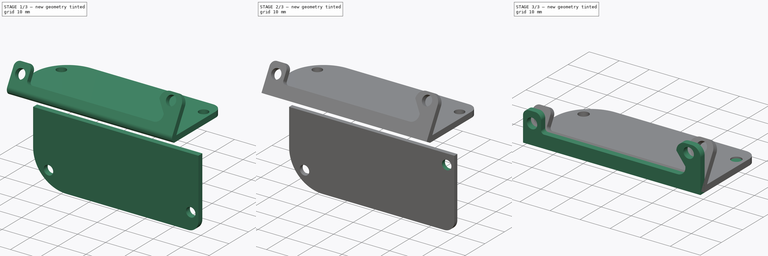
[diagram: build sequence overview — one tinted view per stage of 3, left to right]
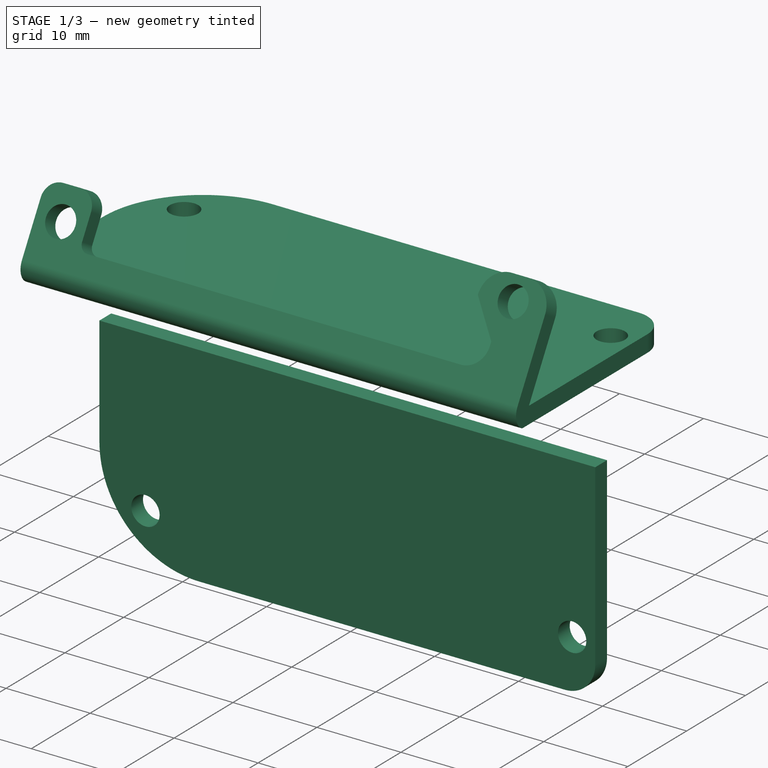
[diagram: stage 1 of 3 — iso view after this stage's code; geometry added in this stage tinted green]
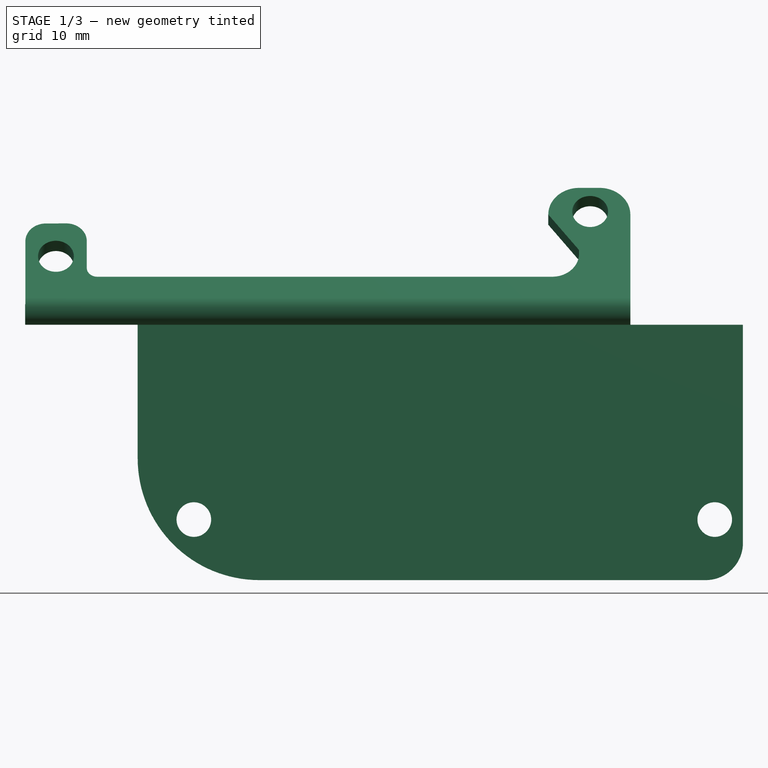
[diagram: stage 1 of 3 — front view after this stage's code; geometry added in this stage tinted green]
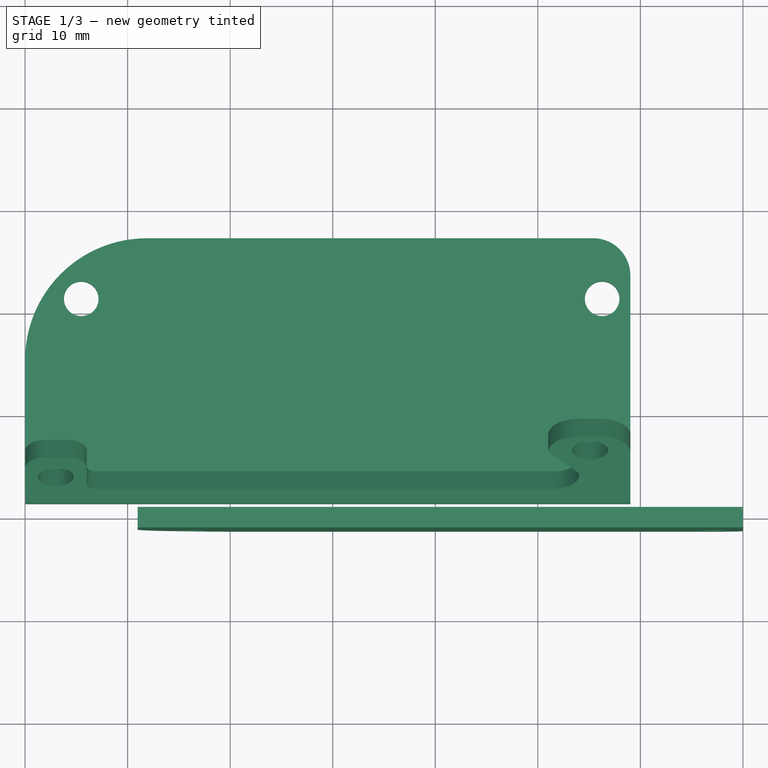
[diagram: stage 1 of 3 — top view after this stage's code; geometry added in this stage tinted green]
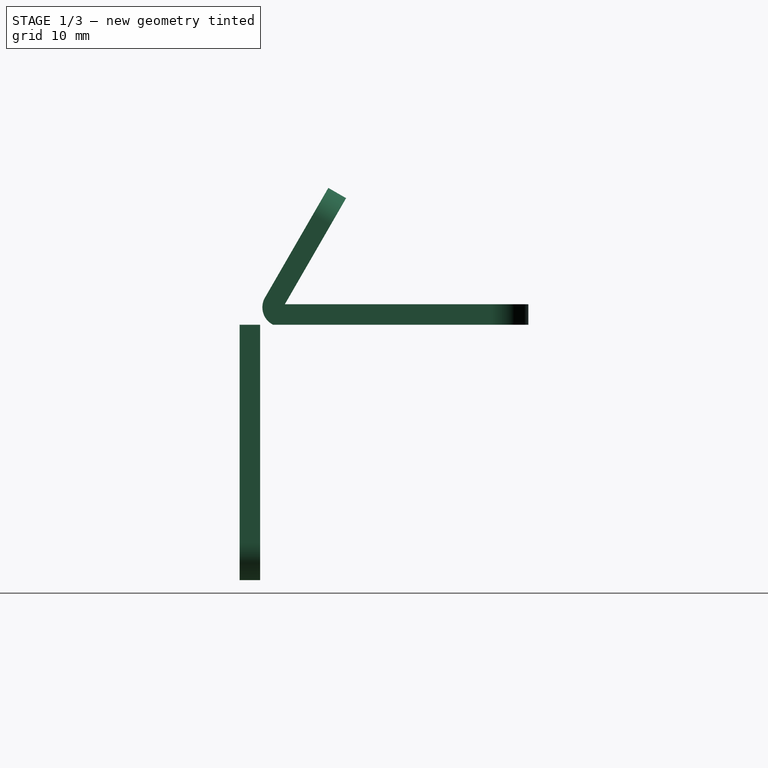
[diagram: stage 1 of 3 — right view after this stage's code; geometry added in this stage tinted green]
FCSTD DOCUMENT  (FreeCAD 0.16R6707 (Git))
Label: icezum-arduino-stand-holder
License: All rights reserved
LicenseURL: http://en.wikipedia.org/wiki/All_rights_reserved
objects: Sketcher::SketchObject×4, PartDesign::Pad×4, Part::Feature×3, Part::MultiFuse×2, App::DocumentObjectGroup×2, Part::Fillet×1
note: 18 computed .brp shape members not serialized (recipe doc carries the construction recipe); baked Part::Feature solids carry a one-line shape summary decoded from their .brp

FEATURE [Sketcher::SketchObject] Sketch004
  Placement = pos=(0,-1.2525,0) rot=(1,0,0;1.5708rad)
  sketch-geometry (8):
    g0: LineSegment StartX=10.98 StartY=0 StartZ=0 EndX=70 EndY=0 EndZ=0
    g1: Circle CenterX=67.2508 CenterY=-19 CenterZ=0 NormalX=0 NormalY=0 NormalZ=1 Radius=1.68752
    g2: LineSegment StartX=70 StartY=0 StartZ=0 EndX=70 EndY=-21.2825 EndZ=0
    g3: LineSegment StartX=10.98 StartY=0 StartZ=0 EndX=10.98 EndY=-13.025 EndZ=0
    g4: LineSegment StartX=22.8593 StartY=-24.9043 StartZ=0 EndX=66.3781 EndY=-24.9043 EndZ=0
    g5: ArcOfCircle CenterX=22.8593 CenterY=-13.025 CenterZ=0 NormalX=0 NormalY=0 NormalZ=1 Radius=11.8793 StartAngle=3.14159 EndAngle=4.71239
    g6: ArcOfCircle CenterX=66.3781 CenterY=-21.2825 CenterZ=0 NormalX=0 NormalY=0 NormalZ=1 Radius=3.62188 StartAngle=4.71239 EndAngle=6.28319
    g7: Circle CenterX=16.4578 CenterY=-19 CenterZ=0 NormalX=0 NormalY=0 NormalZ=1 Radius=1.68752
  constraints (15):
    c: PointOnObject(g0,g-1)
    c: PointOnObject(g0,g-1)
    c: Coincident(g0,g2)
    c: Vertical(g2)
    c: Coincident(g3,g0)
    c: Vertical(g3)
    c: Horizontal(g4)
    c: Tangent(g3,g5) = -1.5708
    c: Tangent(g4,g5) = -1.5708
    c: Tangent(g2,g6) = 1.5708
    c: Tangent(g4,g6) = -1.5708
    c: DistanceX(g0,g0) = 59.02
    c: DistanceX(g7,g1) = 50.793
    c: DistanceY(g7,g0) = 19
    c: DistanceX(g0,g7) = 5.47777
FEATURE [PartDesign::Pad] Pad003  label="base_and_horizontal_holder001"
  Length = 2
  Length2 = 100
  Placement = pos=(0,-1.2525,0) rot=(1,0,0;1.5708rad)
  Reversed = true
  Sketch = -> Sketch004
  Type = 0
FEATURE [Part::Feature] Fusion001001_solid  label="icezum_30_horizontal_holder002 (Solid)"
  shape: bbox 59.02 x 13.34 x 26.63 mm, 29 faces (baked)
FEATURE [Part::Fillet] Fillet  label="rounded_icezum_30_degrees_stand_holder"
  Base = -> Fusion001001_solid
  Edges = 1 edges r=1.9: [Edge38]
  Placement = pos=(23.27,-2,30.75) rot=(1,0,0;1.5708rad)
FEATURE [Part::Feature] Pcb001  label="pcb_horizontal"
  Placement = pos=(168,-85.5,3) rot=(0,0,1;3.14159rad)
  shape: bbox 68.58 x 53.34 x 1.6 mm, 170 faces (baked)
FEATURE [Part::Feature] Pcb002  label="pcb_vertical"
  Placement = pos=(-107.5,-2,146.2) rot=(-1,0,0;4.71239rad)
  shape: bbox 68.58 x 1.6 x 53.34 mm, 170 faces (baked)
FEATURE [App::DocumentObjectGroup] Grupo  label="pcbs"
  Group = -> [Pcb001,Pcb002]
FEATURE [App::DocumentObjectGroup] Grupo003  label="icezum_vertical-horizontal_holder"
  Group = -> [Fusion,Fusion001,Fillet,Grupo]
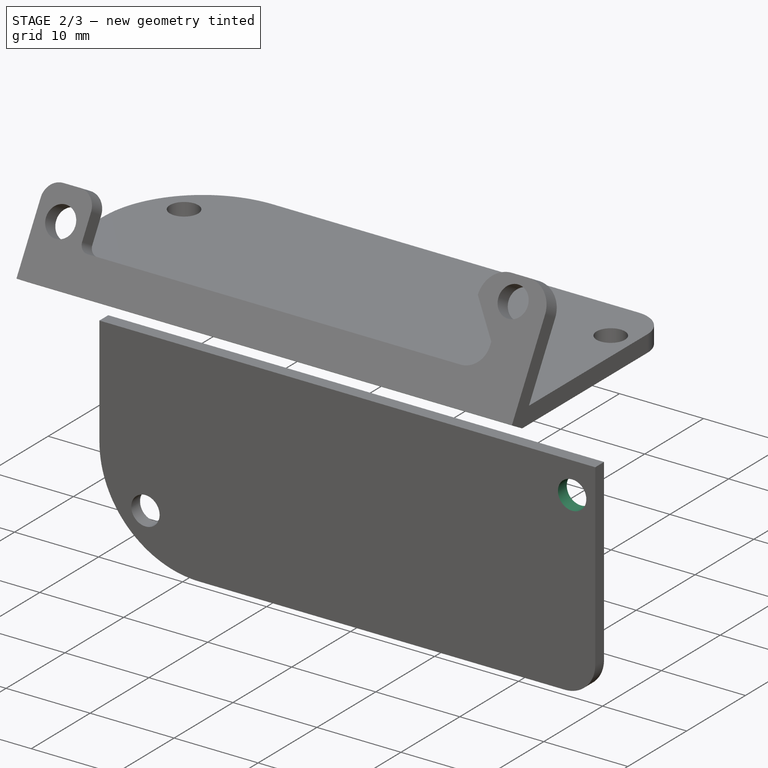
[diagram: stage 2 of 3 — iso view after this stage's code; geometry added in this stage tinted green]
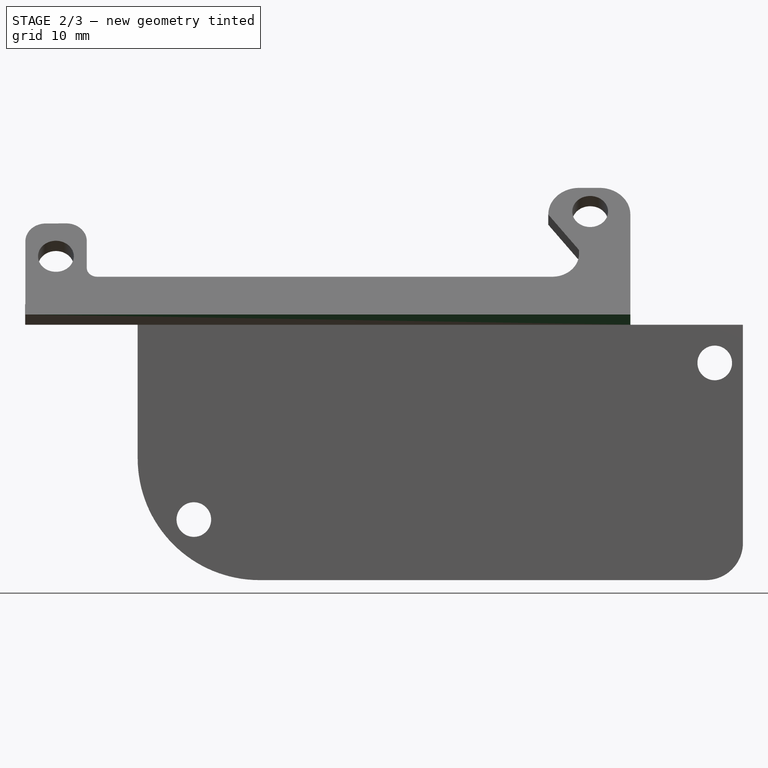
[diagram: stage 2 of 3 — front view after this stage's code; geometry added in this stage tinted green]
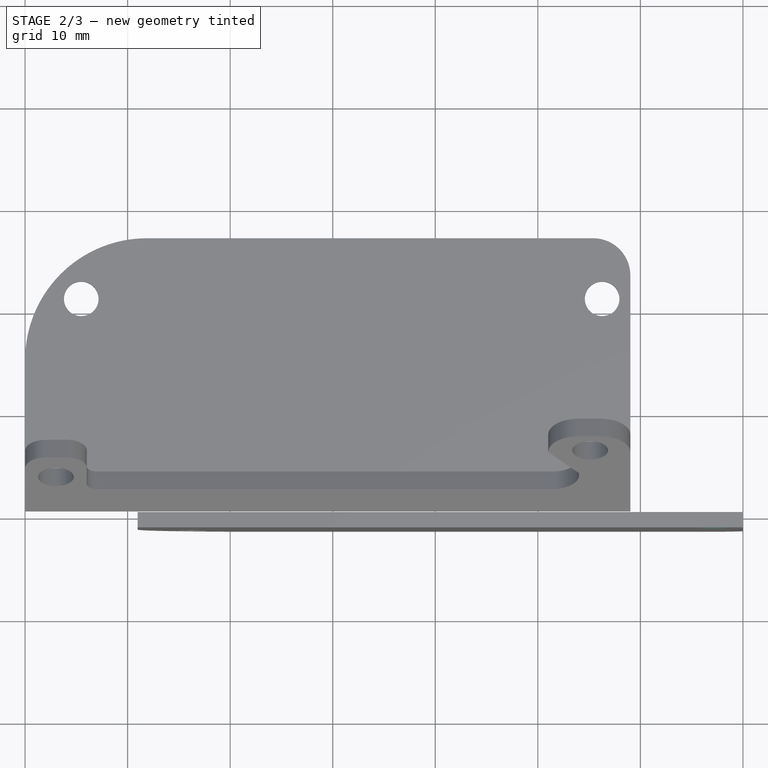
[diagram: stage 2 of 3 — top view after this stage's code; geometry added in this stage tinted green]
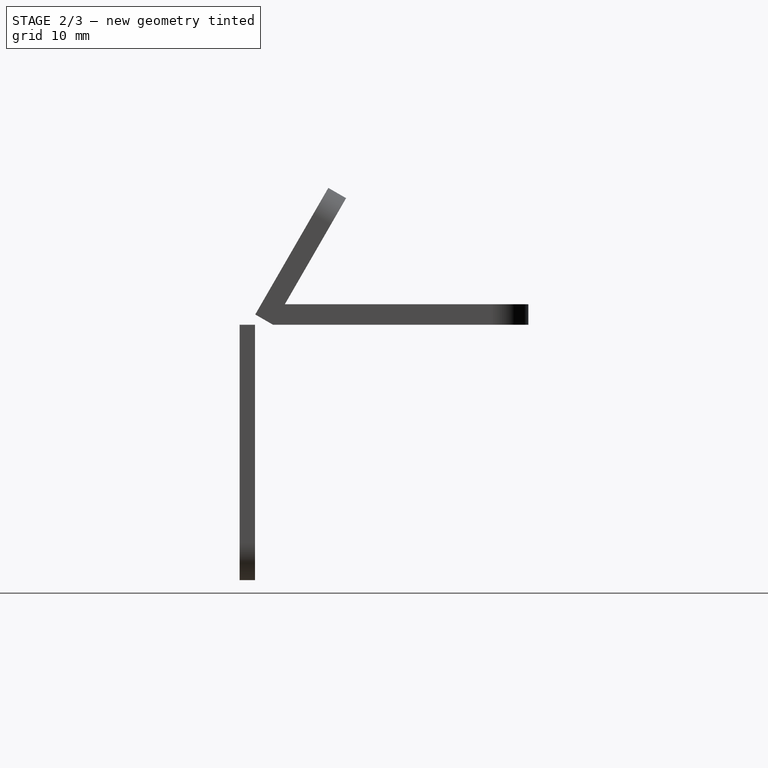
[diagram: stage 2 of 3 — right view after this stage's code; geometry added in this stage tinted green]
FEATURE [Sketcher::SketchObject] Sketch001
  Placement = pos=(0,-1.2525,0) rot=(1,0,0;1.5708rad)
  sketch-geometry (8):
    g0: LineSegment StartX=10.98 StartY=0 StartZ=0 EndX=70 EndY=0 EndZ=0
    g1: Circle CenterX=67.2508 CenterY=-3.72747 CenterZ=0 NormalX=0 NormalY=0 NormalZ=1 Radius=1.68752
    g2: LineSegment StartX=70 StartY=0 StartZ=0 EndX=70 EndY=-21.2825 EndZ=0
    g3: LineSegment StartX=10.98 StartY=0 StartZ=0 EndX=10.98 EndY=-13.025 EndZ=0
    g4: LineSegment StartX=22.8593 StartY=-24.9043 StartZ=0 EndX=66.3781 EndY=-24.9043 EndZ=0
    g5: ArcOfCircle CenterX=22.8593 CenterY=-13.025 CenterZ=0 NormalX=0 NormalY=0 NormalZ=1 Radius=11.8793 StartAngle=3.14159 EndAngle=4.71239
    g6: ArcOfCircle CenterX=66.3781 CenterY=-21.2825 CenterZ=0 NormalX=0 NormalY=0 NormalZ=1 Radius=3.62188 StartAngle=4.71239 EndAngle=6.28319
    g7: Circle CenterX=16.4578 CenterY=-19 CenterZ=0 NormalX=0 NormalY=0 NormalZ=1 Radius=1.68752
  constraints (14):
    c: PointOnObject(g0,g-1)
    c: PointOnObject(g0,g-1)
    c: Coincident(g0,g2)
    c: Vertical(g2)
    c: Coincident(g3,g0)
    c: Vertical(g3)
    c: Horizontal(g4)
    c: Tangent(g3,g5) = -1.5708
    c: Tangent(g4,g5) = -1.5708
    c: Tangent(g2,g6) = 1.5708
    c: Tangent(g4,g6) = -1.5708
    c: DistanceX(g0,g0) = 59.02
    c: DistanceX(g7,g1) = 50.793
    c: DistanceY(g7,g1) = 15.2725
FEATURE [PartDesign::Pad] Pad001  label="base_and_horizontal_holder"
  Length = 1.5
  Length2 = 100
  Placement = pos=(0,-1.2525,0) rot=(1,0,0;1.5708rad)
  Reversed = true
  Sketch = -> Sketch001
  Type = 0
FEATURE [Sketcher::SketchObject] Sketch003  label="solid001"
  Placement = pos=(0,-0.167,-0.63) rot=(-1,0,0;0.523599rad)
  sketch-geometry (18):
    g0: Circle CenterX=13.9885 CenterY=5.29909 CenterZ=0 NormalX=0 NormalY=0 NormalZ=1 Radius=1.74609
    g1: Circle CenterX=66.0823 CenterY=10.3424 CenterZ=0 NormalX=0 NormalY=0 NormalZ=1 Radius=1.74609
    g2: LineSegment StartX=11.0125 StartY=-1.25328 StartZ=0 EndX=11.0125 EndY=6.99714 EndZ=0
    g3: LineSegment StartX=11.0125 StartY=-1.25328 StartZ=0 EndX=70 EndY=-1.25328 EndZ=0
    g4: LineSegment StartX=70 StartY=10 StartZ=0 EndX=70 EndY=-1.25328 EndZ=0
    g5: ArcOfCircle CenterX=13.0083 CenterY=6.99714 CenterZ=0 NormalX=0 NormalY=0 NormalZ=1 Radius=1.99581 StartAngle=1.57433 EndAngle=3.14159
    g6: LineSegment StartX=13.0013 StartY=8.99294 StartZ=0 EndX=15 EndY=9 EndZ=0
    g7: LineSegment StartX=16.9976 StartY=7.00943 StartZ=0 EndX=16.9976 EndY=4 EndZ=0
    g8: LineSegment StartX=17.9976 StartY=3 StartZ=0 EndX=62 EndY=3 EndZ=0
    g9: LineSegment StartX=62 StartY=3 StartZ=0 EndX=62.4013 EndY=3 EndZ=0
    g10: LineSegment StartX=65 StartY=5.59871 StartZ=0 EndX=65 EndY=6 EndZ=0
    g11: LineSegment StartX=65 StartY=13 StartZ=0 EndX=67 EndY=13 EndZ=0
    g12: ArcOfCircle CenterX=15.007 CenterY=7.00943 CenterZ=0 NormalX=0 NormalY=0 NormalZ=1 Radius=1.99059 StartAngle=0 EndAngle=1.57433
    g13: ArcOfCircle CenterX=17.9976 CenterY=4 CenterZ=0 NormalX=0 NormalY=0 NormalZ=1 Radius=1 StartAngle=3.14159 EndAngle=4.71239
    g14: ArcOfCircle CenterX=62.4013 CenterY=5.59871 CenterZ=0 NormalX=0 NormalY=0 NormalZ=1 Radius=2.59871 StartAngle=4.71239 EndAngle=6.28319
    g15: ArcOfCircle CenterX=65 CenterY=10 CenterZ=0 NormalX=0 NormalY=0 NormalZ=1 Radius=3 StartAngle=1.5708 EndAngle=3.14159
    g16: ArcOfCircle CenterX=67 CenterY=10 CenterZ=0 NormalX=0 NormalY=0 NormalZ=1 Radius=3 StartAngle=0 EndAngle=1.5708
    g17: LineSegment StartX=65 StartY=6 StartZ=0 EndX=62 EndY=10 EndZ=0
  constraints (25):
    c: Vertical(g2)
    c: Coincident(g3,g2)
    c: Horizontal(g3)
    c: DistanceY(g0,g1) = 5.04331
    c: Coincident(g4,g3)
    c: Vertical(g4)
    c: Tangent(g2,g5) = 1.5708
    c: Tangent(g5,g6) = 1.5708
    c: Vertical(g7)
    c: Horizontal(g8)
    c: Coincident(g8,g9)
    c: Horizontal(g9)
    c: Vertical(g10)
    c: Horizontal(g11)
    c: Tangent(g7,g12) = 1.5708
    c: Tangent(g6,g12) = 1.5708
    c: Tangent(g7,g13) = -1.5708
    c: Tangent(g8,g13) = -1.5708
    c: Tangent(g10,g14) = -1.5708
    c: Tangent(g9,g14) = -1.5708
    c: Tangent(g11,g15) = 1.5708
    c: Tangent(g11,g16) = 1.5708
    c: Tangent(g4,g16) = 1.5708
    c: Coincident(g17,g10)
    c: Coincident(g17,g15)
FEATURE [PartDesign::Pad] Pad002  label="vertical_holder001"
  Length = 2
  Length2 = 100
  Placement = pos=(0,-0.167,-0.63) rot=(-1,0,0;0.523599rad)
  Sketch = -> Sketch003
  Type = 0
FEATURE [Part::MultiFuse] Fusion001  label="icezum_30_degrees_stand_holder"
  Placement = pos=(-10.98,2,1.25) rot=(1,0,0;1.5708rad)
  Shapes = -> [Pad002,Pad003]
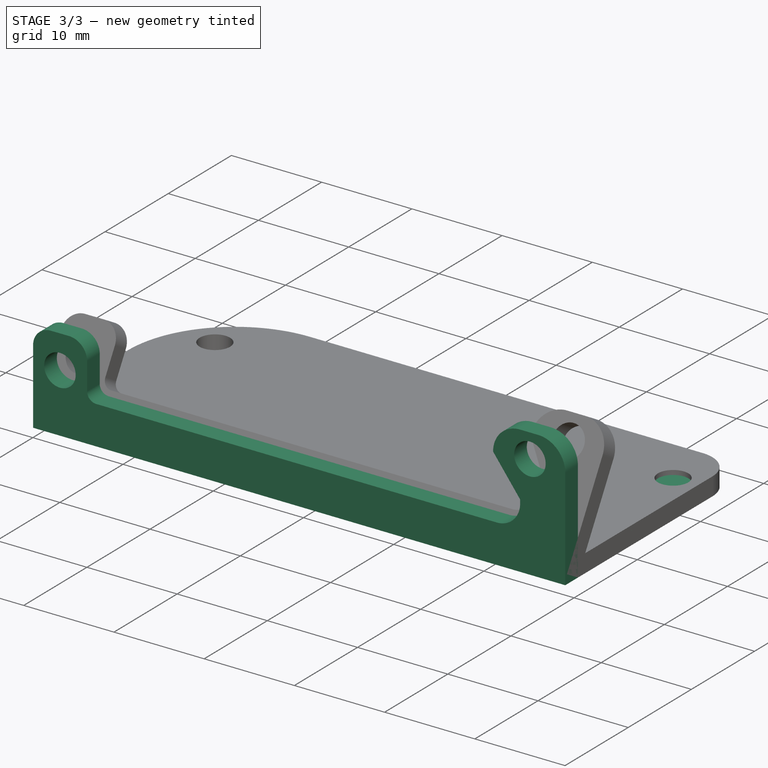
[diagram: stage 3 of 3 — iso view after this stage's code; geometry added in this stage tinted green]
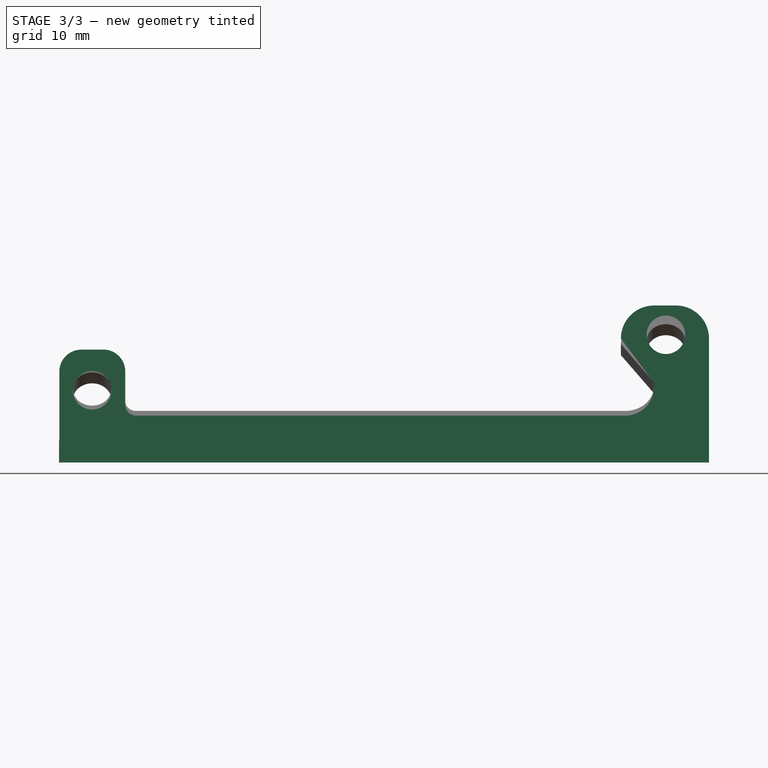
[diagram: stage 3 of 3 — front view after this stage's code; geometry added in this stage tinted green]
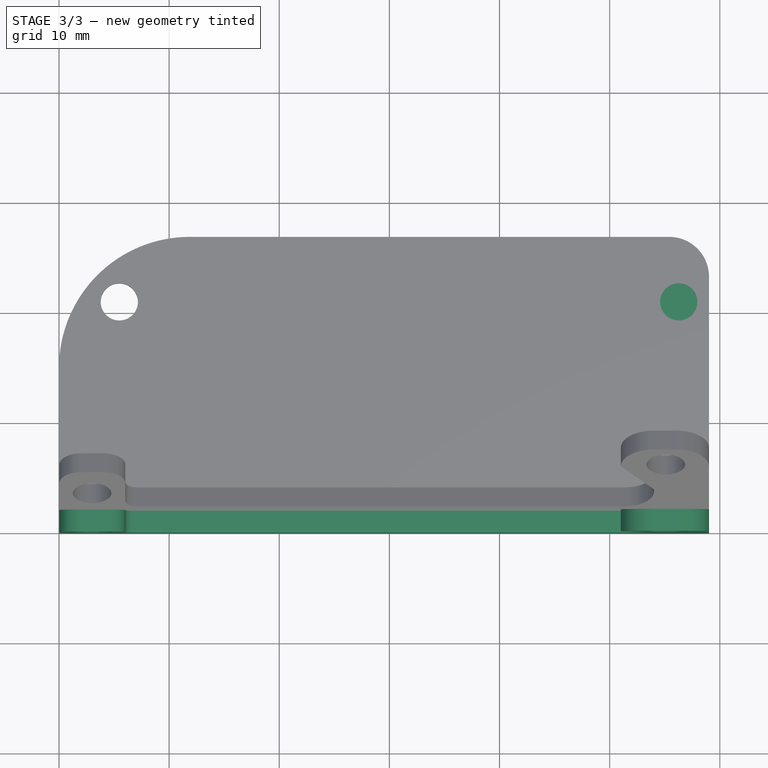
[diagram: stage 3 of 3 — top view after this stage's code; geometry added in this stage tinted green]
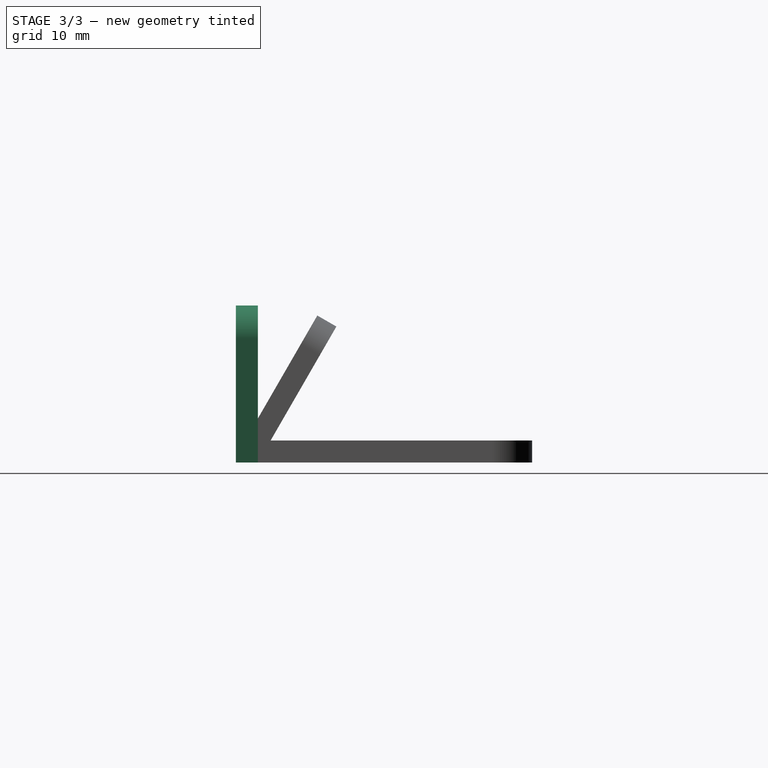
[diagram: stage 3 of 3 — right view after this stage's code; geometry added in this stage tinted green]
FEATURE [Sketcher::SketchObject] Sketch  label="solid"
  sketch-geometry (18):
    g0: Circle CenterX=13.9885 CenterY=5.29909 CenterZ=0 NormalX=0 NormalY=0 NormalZ=1 Radius=1.74609
    g1: Circle CenterX=66.0823 CenterY=10.3424 CenterZ=0 NormalX=0 NormalY=0 NormalZ=1 Radius=1.74609
    g2: LineSegment StartX=11.0125 StartY=-1.25328 StartZ=0 EndX=11.0125 EndY=6.99714 EndZ=0
    g3: LineSegment StartX=11.0125 StartY=-1.25328 StartZ=0 EndX=70 EndY=-1.25328 EndZ=0
    g4: LineSegment StartX=70 StartY=10 StartZ=0 EndX=70 EndY=-1.25328 EndZ=0
    g5: ArcOfCircle CenterX=13.0083 CenterY=6.99714 CenterZ=0 NormalX=0 NormalY=0 NormalZ=1 Radius=1.99581 StartAngle=1.57433 EndAngle=3.14159
    g6: LineSegment StartX=13.0013 StartY=8.99294 StartZ=0 EndX=15 EndY=9 EndZ=0
    g7: LineSegment StartX=16.9976 StartY=7.00943 StartZ=0 EndX=16.9976 EndY=4 EndZ=0
    g8: LineSegment StartX=17.9976 StartY=3 StartZ=0 EndX=62 EndY=3 EndZ=0
    g9: LineSegment StartX=62 StartY=3 StartZ=0 EndX=62.4013 EndY=3 EndZ=0
    g10: LineSegment StartX=65 StartY=5.59871 StartZ=0 EndX=65 EndY=6 EndZ=0
    g11: LineSegment StartX=65 StartY=13 StartZ=0 EndX=67 EndY=13 EndZ=0
    g12: ArcOfCircle CenterX=15.007 CenterY=7.00943 CenterZ=0 NormalX=0 NormalY=0 NormalZ=1 Radius=1.99059 StartAngle=0 EndAngle=1.57433
    g13: ArcOfCircle CenterX=17.9976 CenterY=4 CenterZ=0 NormalX=0 NormalY=0 NormalZ=1 Radius=1 StartAngle=3.14159 EndAngle=4.71239
    g14: ArcOfCircle CenterX=62.4013 CenterY=5.59871 CenterZ=0 NormalX=0 NormalY=0 NormalZ=1 Radius=2.59871 StartAngle=4.71239 EndAngle=6.28319
    g15: ArcOfCircle CenterX=65 CenterY=10 CenterZ=0 NormalX=0 NormalY=0 NormalZ=1 Radius=3 StartAngle=1.5708 EndAngle=3.14159
    g16: ArcOfCircle CenterX=67 CenterY=10 CenterZ=0 NormalX=0 NormalY=0 NormalZ=1 Radius=3 StartAngle=0 EndAngle=1.5708
    g17: LineSegment StartX=65 StartY=6 StartZ=0 EndX=62 EndY=10 EndZ=0
  constraints (25):
    c: Vertical(g2)
    c: Coincident(g3,g2)
    c: Horizontal(g3)
    c: DistanceY(g0,g1) = 5.04331
    c: Coincident(g4,g3)
    c: Vertical(g4)
    c: Tangent(g2,g5) = 1.5708
    c: Tangent(g5,g6) = 1.5708
    c: Vertical(g7)
    c: Horizontal(g8)
    c: Coincident(g8,g9)
    c: Horizontal(g9)
    c: Vertical(g10)
    c: Horizontal(g11)
    c: Tangent(g7,g12) = 1.5708
    c: Tangent(g6,g12) = 1.5708
    c: Tangent(g7,g13) = -1.5708
    c: Tangent(g8,g13) = -1.5708
    c: Tangent(g10,g14) = -1.5708
    c: Tangent(g9,g14) = -1.5708
    c: Tangent(g11,g15) = 1.5708
    c: Tangent(g11,g16) = 1.5708
    c: Tangent(g4,g16) = 1.5708
    c: Coincident(g17,g10)
    c: Coincident(g17,g15)
FEATURE [PartDesign::Pad] Pad  label="vertical_holder"
  Length = 2
  Length2 = 100
  Sketch = -> Sketch
  Type = 0
FEATURE [Part::MultiFuse] Fusion  label="icezum_vertical_horizontal_stand_holder"
  Placement = pos=(-10.98,2,1.25) rot=(1,0,0;1.5708rad)
  Shapes = -> [Pad,Pad001]
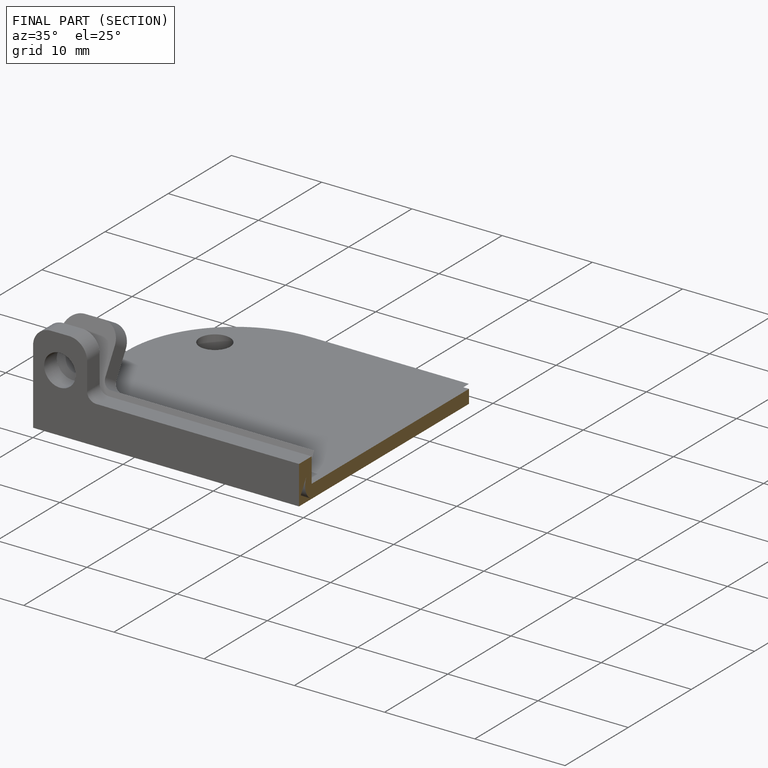
[diagram: finished part — half-section view (interior)]
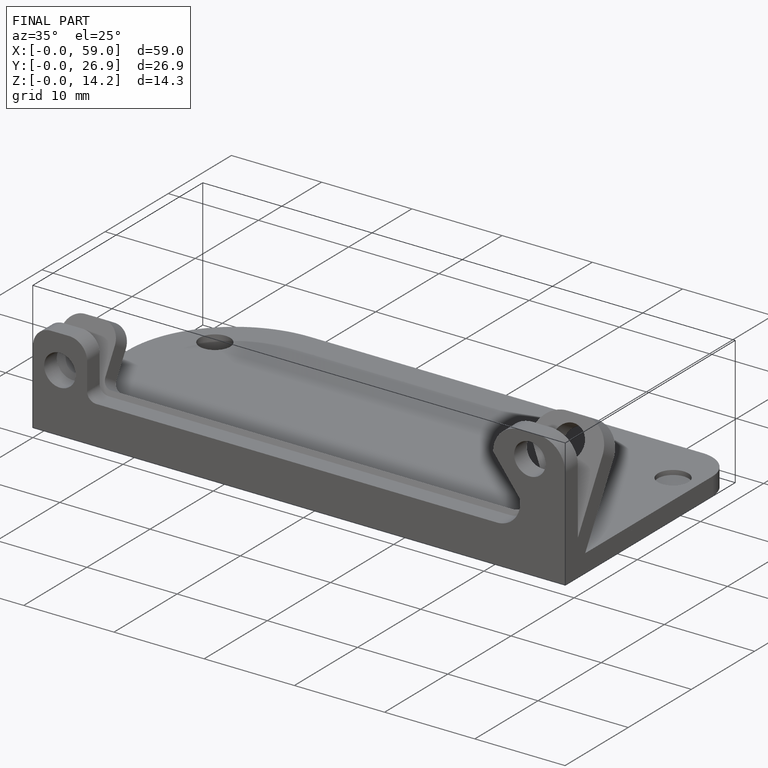
[diagram: finished part — iso view with bounding-box wireframe]
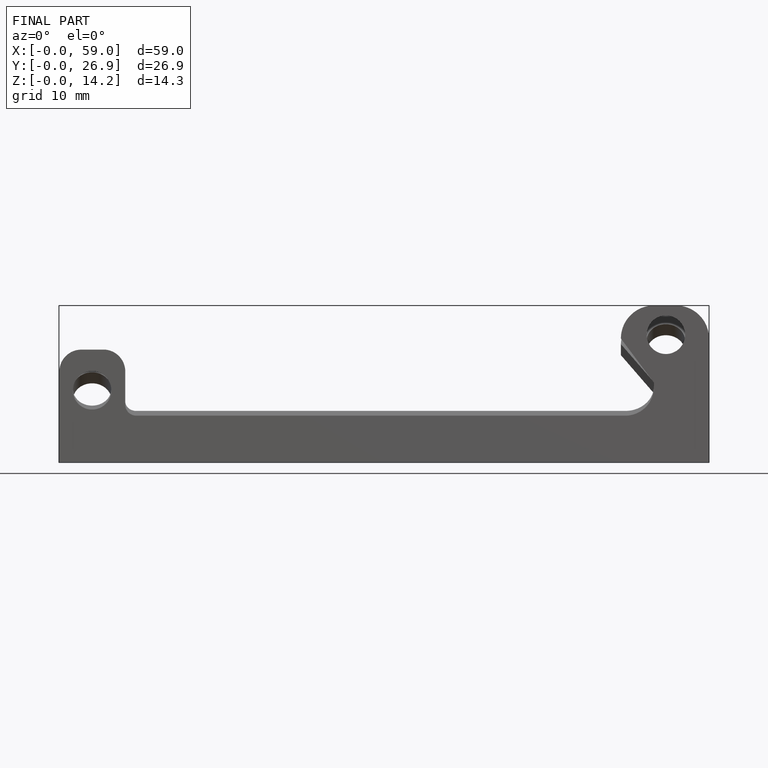
[diagram: finished part — front view with bounding-box wireframe]
